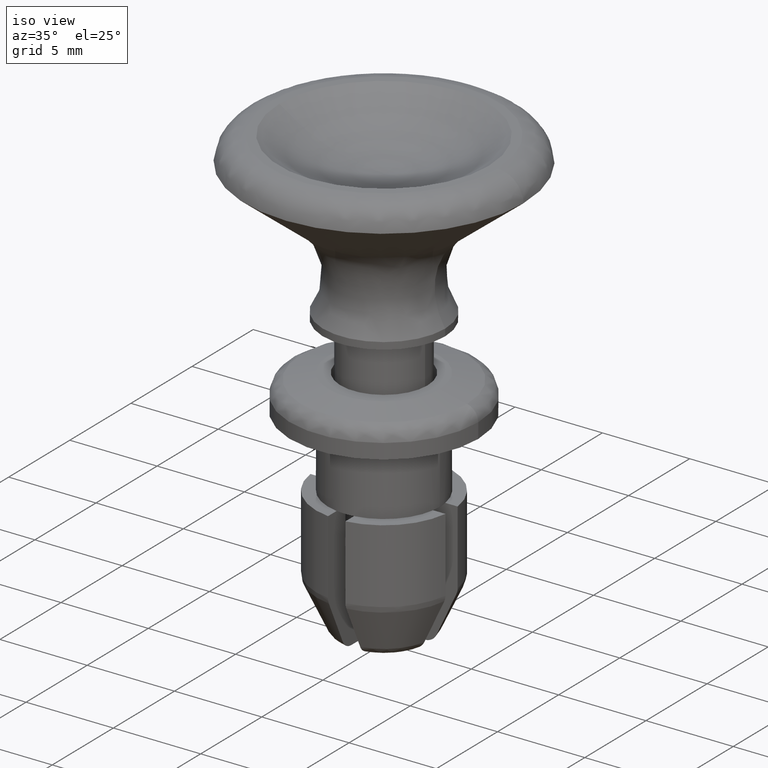
[diagram: clean part render]
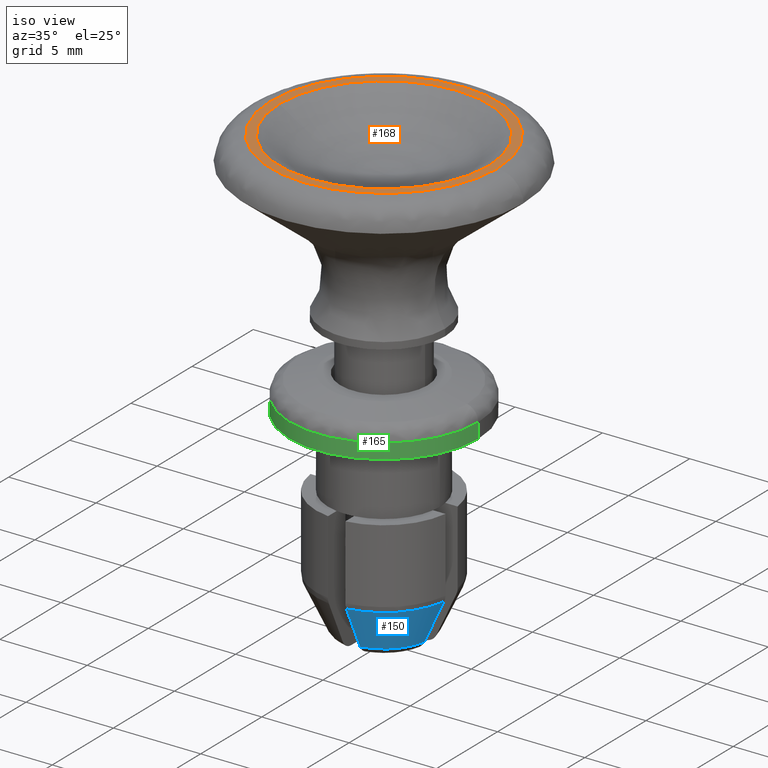
[diagram: same view with three faces highlighted in distinct colors, each labeled with its STEP entity id]
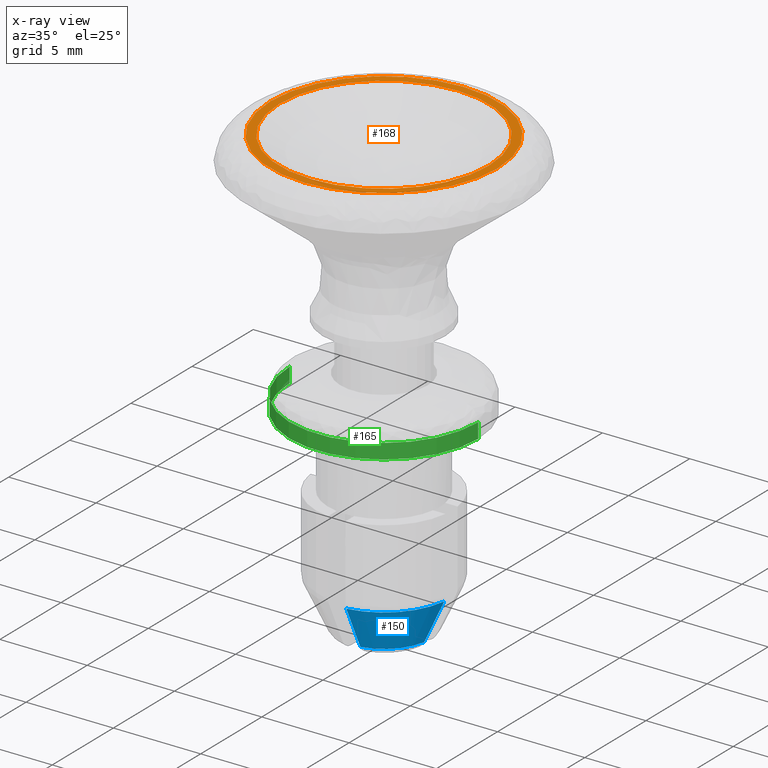
[diagram: x-ray of the same camera — body ghosted, the three highlighted faces saturated]
A machine part, iso view with three faces highlighted in distinct colors.
The next image is the same camera in x-ray (body ghosted, the three faces saturated) — at least one of them is partly hidden behind the body in this view.
Their STEP definitions:

[orange] entity #168 — the highlighted planar face has unit normal (0, 0, 1).
#168=ADVANCED_FACE('',(#758,#759),#757,.T.);
#757=PLANE('',#1450);
#758=FACE_OUTER_BOUND('',#1451,.T.);
#759=FACE_BOUND('',#1452,.T.);
#1447=CARTESIAN_POINT('',(-8.45429000000E+00,-1.35168552202E+01,9.50000000000E+00));
#1448=DIRECTION('',(0.00000000000E+00,0.00000000000E+00,1.00000000000E+00));
#1449=DIRECTION('',(1.00000000000E+00,0.00000000000E+00,0.00000000000E+00));
#1450=AXIS2_PLACEMENT_3D('',#1447,#1448,#1449);
#1451=EDGE_LOOP('',(#1998,#1999));
#1452=EDGE_LOOP('',(#2000,#2001));
#1998=ORIENTED_EDGE('',*,*,#2252,.F.);
#1999=ORIENTED_EDGE('',*,*,#2253,.F.);
#2000=ORIENTED_EDGE('',*,*,#2254,.T.);
#2001=ORIENTED_EDGE('',*,*,#2255,.T.);
#2252=EDGE_CURVE('',#3300,#3301,#3302,.T.);
#2253=EDGE_CURVE('',#3301,#3300,#3308,.T.);
#2254=EDGE_CURVE('',#3314,#3315,#3316,.T.);
#2255=EDGE_CURVE('',#3315,#3314,#3322,.T.);
#3300=VERTEX_POINT('',#4307);
#3301=VERTEX_POINT('',#4308);
#3302=CIRCLE('',#4312,6.50330000000E+00);
#3308=CIRCLE('',#4316,6.50330000000E+00);
#3314=VERTEX_POINT('',#4317);
#3315=VERTEX_POINT('',#4318);
#3316=CIRCLE('',#4322,6.00000000000E+00);
#3322=CIRCLE('',#4326,6.00000000000E+00);
#4307=CARTESIAN_POINT('',(6.50330000000E+00,0.00000000000E+00,9.50000000000E+00));
#4308=CARTESIAN_POINT('',(-6.50330000000E+00,0.00000000000E+00,9.50000000000E+00));
#4309=CARTESIAN_POINT('',(0.00000000000E+00,0.00000000000E+00,9.50000000000E+00));
#4310=DIRECTION('',(-0.00000000000E+00,0.00000000000E+00,-1.00000000000E+00));
#4311=DIRECTION('',(-1.00000000000E+00,-1.22460635382E-16,0.00000000000E+00));
#4312=AXIS2_PLACEMENT_3D('',#4309,#4310,#4311);
#4313=CARTESIAN_POINT('',(0.00000000000E+00,0.00000000000E+00,9.50000000000E+00));
#4314=DIRECTION('',(-0.00000000000E+00,0.00000000000E+00,-1.00000000000E+00));
#4315=DIRECTION('',(-1.00000000000E+00,-1.22460635382E-16,0.00000000000E+00));
#4316=AXIS2_PLACEMENT_3D('',#4313,#4314,#4315);
#4317=CARTESIAN_POINT('',(-6.00000000000E+00,0.00000000000E+00,9.50000000000E+00));
#4318=CARTESIAN_POINT('',(6.00000000000E+00,-2.96059473233E-16,9.50000000000E+00));
#4319=CARTESIAN_POINT('',(0.00000000000E+00,0.00000000000E+00,9.50000000000E+00));
#4320=DIRECTION('',(-0.00000000000E+00,0.00000000000E+00,-1.00000000000E+00));
#4321=DIRECTION('',(-1.00000000000E+00,-1.22460635382E-16,0.00000000000E+00));
#4322=AXIS2_PLACEMENT_3D('',#4319,#4320,#4321);
#4323=CARTESIAN_POINT('',(0.00000000000E+00,0.00000000000E+00,9.50000000000E+00));
#4324=DIRECTION('',(-0.00000000000E+00,0.00000000000E+00,-1.00000000000E+00));
#4325=DIRECTION('',(-1.00000000000E+00,-1.22460635382E-16,0.00000000000E+00));
#4326=AXIS2_PLACEMENT_3D('',#4323,#4324,#4325);

[blue] entity #150 — the highlighted face is a freeform B-spline surface patch.
#150=ADVANCED_FACE('',(#578),#577,.T.);
#577=( BOUNDED_SURFACE() B_SPLINE_SURFACE( 2,1,((#1301,#1302),(#1303,#1304),(#1305,#1306)), .UNSPECIFIED.,.F.,.F.,.F.) B_SPLINE_SURFACE_WITH_KNOTS((3,3),(2,2),(0.00000000000E+00,1.00000000000E+00),(0.00000000000E+00,1.00000000000E+00), .UNSPECIFIED. ) GEOMETRIC_REPRESENTATION_ITEM() RATIONAL_B_SPLINE_SURFACE(((1.00000000000E+00,1.00000000000E+00),(7.93286930762E-01,7.93286930762E-01),(1.00000000000E+00,1.00000000000E+00))) REPRESENTATION_ITEM('') SURFACE() );
#578=FACE_OUTER_BOUND('',#1307,.T.);
#1301=CARTESIAN_POINT('',(3.52884519537E-01,-2.68268518557E+00,-1.30592679137E+01));
#1302=CARTESIAN_POINT('',(4.99491440526E-01,-3.79721470801E+00,-1.06505162735E+01));
#1303=CARTESIAN_POINT('',(2.41184623292E+00,-2.41184620719E+00,-1.30592679137E+01));
#1304=CARTESIAN_POINT('',(3.41385490865E+00,-3.41385487223E+00,-1.06505162735E+01));
#1305=CARTESIAN_POINT('',(2.68268518933E+00,-3.52884490917E-01,-1.30592679137E+01));
#1306=CARTESIAN_POINT('',(3.79721471334E+00,-4.99491400016E-01,-1.06505162735E+01));
#1307=EDGE_LOOP('',(#1902,#1903,#1904,#1905));
#1902=ORIENTED_EDGE('',*,*,#2182,.F.);
#1903=ORIENTED_EDGE('',*,*,#2202,.T.);
#1904=ORIENTED_EDGE('',*,*,#2164,.F.);
#1905=ORIENTED_EDGE('',*,*,#2129,.F.);
#2129=EDGE_CURVE('',#2486,#2494,#2495,.T.);
#2164=EDGE_CURVE('',#2494,#2730,#2731,.T.);
#2182=EDGE_CURVE('',#2847,#2486,#2854,.T.);
#2202=EDGE_CURVE('',#2847,#2730,#2984,.T.);
#2486=VERTEX_POINT('',#3785);
#2494=VERTEX_POINT('',#3793);
#2495=CIRCLE('',#3797,2.70602087899E+00);
#2730=VERTEX_POINT('',#3943);
#2731=(BOUNDED_CURVE() B_SPLINE_CURVE(3,(#3944,#3945,#3946,#3947),.UNSPECIFIED.,.F.,.F.) B_SPLINE_CURVE_WITH_KNOTS((4,4),(1.89596754677E-02,2.16228946496E-02),.UNSPECIFIED.) CURVE() GEOMETRIC_REPRESENTATION_ITEM() RATIONAL_B_SPLINE_CURVE((1.00000000000E+00,1.00000000000E+00,1.00000000000E+00,1.00000000000E+00)) REPRESENTATION_ITEM('') );
#2847=VERTEX_POINT('',#4021);
#2854=(BOUNDED_CURVE() B_SPLINE_CURVE(3,(#4028,#4029,#4030,#4031),.UNSPECIFIED.,.F.,.F.) B_SPLINE_CURVE_WITH_KNOTS((4,4),(1.95287899329E-03,4.61583250251E-03),.UNSPECIFIED.) CURVE() GEOMETRIC_REPRESENTATION_ITEM() RATIONAL_B_SPLINE_CURVE((1.00000000000E+00,1.00000000000E+00,1.00000000000E+00,1.00000000000E+00)) REPRESENTATION_ITEM('') );
#2984=CIRCLE('',#4112,3.82970000000E+00);
#3785=CARTESIAN_POINT('',(2.65942644146E+00,-5.00000000000E-01,-1.30587841873E+01));
#3793=CARTESIAN_POINT('',(5.00000000000E-01,-2.65942644146E+00,-1.30587841873E+01));
#3794=CARTESIAN_POINT('',(0.00000000000E+00,0.00000000000E+00,-1.30587841873E+01));
#3795=DIRECTION('',(0.00000000000E+00,0.00000000000E+00,-1.00000000000E+00));
#3796=DIRECTION('',(1.00000000000E+00,-0.00000000000E+00,-0.00000000000E+00));
#3797=AXIS2_PLACEMENT_3D('',#3794,#3795,#3796);
#3943=CARTESIAN_POINT('',(5.00000000000E-01,-3.79692007949E+00,-1.06510000000E+01));
#3944=CARTESIAN_POINT('',(5.00000000000E-01,-2.65942644146E+00,-1.30587841873E+01));
#3945=CARTESIAN_POINT('',(5.00000000000E-01,-3.04018454349E+00,-1.22569561478E+01));
#3946=CARTESIAN_POINT('',(5.00000000000E-01,-3.41887552802E+00,-1.14541283026E+01));
#3947=CARTESIAN_POINT('',(5.00000000000E-01,-3.79692007949E+00,-1.06510000000E+01));
#4021=CARTESIAN_POINT('',(3.79692007949E+00,-5.00000000000E-01,-1.06510000000E+01));
#4028=CARTESIAN_POINT('',(3.79692007949E+00,-5.00000000000E-01,-1.06510000000E+01));
#4029=CARTESIAN_POINT('',(3.41887747071E+00,-5.00000000000E-01,-1.14541241755E+01));
#4030=CARTESIAN_POINT('',(3.04018706924E+00,-5.00000000000E-01,-1.22569508289E+01));
#4031=CARTESIAN_POINT('',(2.65942644146E+00,-5.00000000000E-01,-1.30587841873E+01));
#4109=CARTESIAN_POINT('',(0.00000000000E+00,0.00000000000E+00,-1.06510000000E+01));
#4110=DIRECTION('',(0.00000000000E+00,0.00000000000E+00,-1.00000000000E+00));
#4111=DIRECTION('',(1.00000000000E+00,-0.00000000000E+00,-0.00000000000E+00));
#4112=AXIS2_PLACEMENT_3D('',#4109,#4110,#4111);

[green] entity #165 — the highlighted cylindrical surface (partial cylindrical patch) has radius 5.4 mm, axis along (0, 0, 1).
#165=ADVANCED_FACE('',(#728),#727,.T.);
#727=CYLINDRICAL_SURFACE('',#1435,5.40000000000E+00);
#728=FACE_OUTER_BOUND('',#1436,.T.);
#1432=CARTESIAN_POINT('',(0.00000000000E+00,0.00000000000E+00,0.00000000000E+00));
#1433=DIRECTION('',(-0.00000000000E+00,-0.00000000000E+00,1.00000000000E+00));
#1434=DIRECTION('',(1.00000000000E+00,0.00000000000E+00,0.00000000000E+00));
#1435=AXIS2_PLACEMENT_3D('',#1432,#1433,#1434);
#1436=EDGE_LOOP('',(#1970,#1971,#1972,#1973));
#1970=ORIENTED_EDGE('',*,*,#2214,.F.);
#1971=ORIENTED_EDGE('',*,*,#2248,.T.);
#1972=ORIENTED_EDGE('',*,*,#2244,.T.);
#1973=ORIENTED_EDGE('',*,*,#2249,.F.);
#2214=EDGE_CURVE('',#3055,#3054,#3062,.T.);
#2244=EDGE_CURVE('',#3250,#3251,#3252,.T.);
#2248=EDGE_CURVE('',#3055,#3250,#3276,.T.);
#2249=EDGE_CURVE('',#3054,#3251,#3282,.T.);
#3054=VERTEX_POINT('',#4157);
#3055=VERTEX_POINT('',#4158);
#3062=CIRCLE('',#4166,5.40000000000E+00);
#3250=VERTEX_POINT('',#4283);
#3251=VERTEX_POINT('',#4284);
#3252=CIRCLE('',#4288,5.40000000000E+00);
#3276=(BOUNDED_CURVE() B_SPLINE_CURVE(1,(#4299,#4300),.UNSPECIFIED.,.F.,.F.) B_SPLINE_CURVE_WITH_KNOTS((2,2),(8.33332935974E-02,9.16666633252E-01),.UNSPECIFIED.) CURVE() GEOMETRIC_REPRESENTATION_ITEM() RATIONAL_B_SPLINE_CURVE((1.00000000000E+00,1.00000000000E+00)) REPRESENTATION_ITEM('') );
#3282=(BOUNDED_CURVE() B_SPLINE_CURVE(1,(#4301,#4302),.UNSPECIFIED.,.F.,.F.) B_SPLINE_CURVE_WITH_KNOTS((2,2),(8.33333333333E-02,9.16666666667E-01),.UNSPECIFIED.) CURVE() GEOMETRIC_REPRESENTATION_ITEM() RATIONAL_B_SPLINE_CURVE((7.50000000000E-01,7.50000000000E-01)) REPRESENTATION_ITEM('') );
#4157=CARTESIAN_POINT('',(-5.40000000000E+00,0.00000000000E+00,-2.00000000000E+00));
#4158=CARTESIAN_POINT('',(5.40000000000E+00,2.96059473233E-16,-2.00000000000E+00));
#4163=CARTESIAN_POINT('',(0.00000000000E+00,0.00000000000E+00,-2.00000000000E+00));
#4164=DIRECTION('',(-0.00000000000E+00,0.00000000000E+00,-1.00000000000E+00));
#4165=DIRECTION('',(-1.00000000000E+00,-1.22460635382E-16,0.00000000000E+00));
#4166=AXIS2_PLACEMENT_3D('',#4163,#4164,#4165);
#4283=CARTESIAN_POINT('',(5.40000000000E+00,2.96059473233E-16,-1.13900000000E+00));
#4284=CARTESIAN_POINT('',(-5.40000000000E+00,0.00000000000E+00,-1.13900000000E+00));
#4285=CARTESIAN_POINT('',(0.00000000000E+00,0.00000000000E+00,-1.13900000000E+00));
#4286=DIRECTION('',(-0.00000000000E+00,0.00000000000E+00,-1.00000000000E+00));
#4287=DIRECTION('',(-1.00000000000E+00,-1.22460635382E-16,0.00000000000E+00));
#4288=AXIS2_PLACEMENT_3D('',#4285,#4286,#4287);
#4299=CARTESIAN_POINT('',(5.40000000000E+00,0.00000000000E+00,-2.00000004106E+00));
#4300=CARTESIAN_POINT('',(5.40000000000E+00,0.00000000000E+00,-1.13900003452E+00));
#4301=CARTESIAN_POINT('',(-5.40000000000E+00,-2.96059473233E-16,-2.00000000000E+00));
#4302=CARTESIAN_POINT('',(-5.40000000000E+00,-2.96059473233E-16,-1.13900000000E+00));